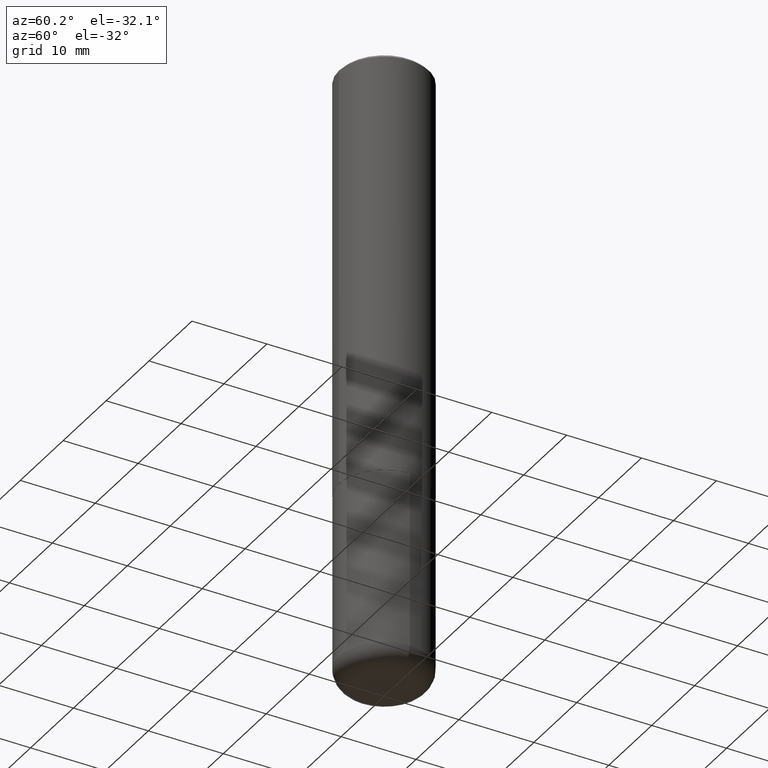
[diagram: clean part render]
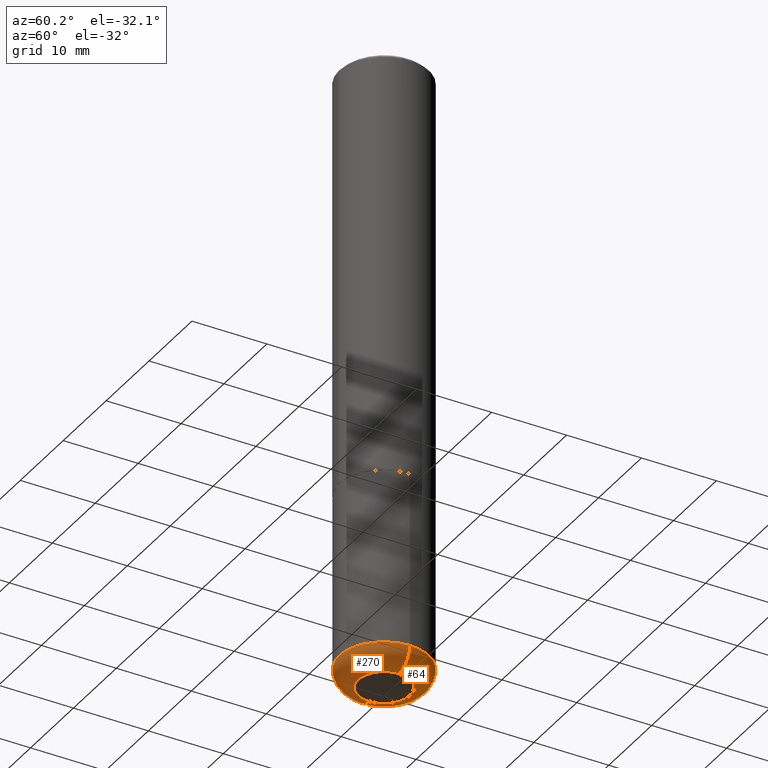
[diagram: same view with one multi-face feature highlighted, each face labeled with its STEP entity id]
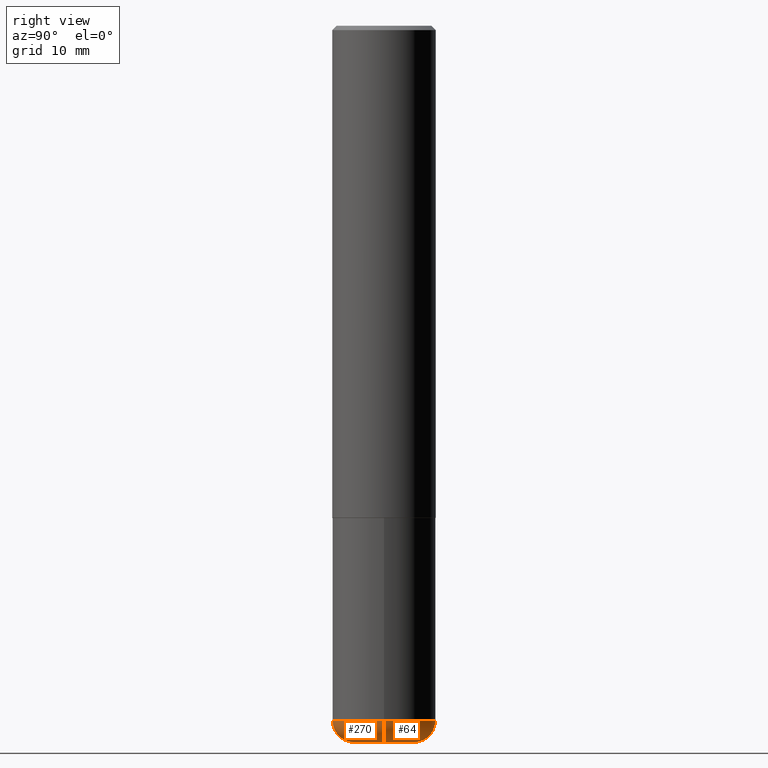
[diagram: same view with one multi-face feature highlighted, each face labeled with its STEP entity id]
A machine part, auxiliary view. The highlighted faces form ONE feature: a constant-radius fillet chain: 2 tangent blend faces with common blend radius 2.4994 mm. The faces share edges in the B-rep.
A second angle (right view) of the same feature is appended — it is thin or edge-on in the first view.
Their STEP definitions:
[1] entity #64 (Torus):
#45 = EDGE_CURVE ( 'NONE', #100, #120, #231, .T. ) ;
#57 = CARTESIAN_POINT ( 'NONE',  ( -0.1378000000000000058, -9.908617773195276440E-15, -3.267700000000000049 ) ) ;
#63 = EDGE_LOOP ( 'NONE', ( #332, #238, #210, #361 ) ) ;
#64 = ADVANCED_FACE ( 'NONE', ( #126 ), #249, .T. ) ;
#65 = DIRECTION ( 'NONE',  ( -2.445468806185136597E-29, 3.491481338843145583E-15, 1.000000000000000000 ) ) ;
#66 = AXIS2_PLACEMENT_3D ( 'NONE', #224, #94, #280 ) ;
#87 = CARTESIAN_POINT ( 'NONE',  ( -0.2362000000000000766, -9.387249865330223945E-15, -3.169299999999999784 ) ) ;
#94 = DIRECTION ( 'NONE',  ( -2.445468806185136597E-29, 3.491481338843145583E-15, 1.000000000000000000 ) ) ;
#99 = CARTESIAN_POINT ( 'NONE',  ( 7.750424287442554569E-29, -1.106555180719558034E-14, -3.169299999999999784 ) ) ;
#100 = VERTEX_POINT ( 'NONE', #57 ) ;
#116 = DIRECTION ( 'NONE',  ( 1.000000000000000000, -6.982962677686272233E-15, 0.000000000000000000 ) ) ;
#120 = VERTEX_POINT ( 'NONE', #87 ) ;
#126 = FACE_OUTER_BOUND ( 'NONE', #63, .T. ) ;
#130 = AXIS2_PLACEMENT_3D ( 'NONE', #228, #288, #413 ) ;
#174 = VERTEX_POINT ( 'NONE', #222 ) ;
#183 = EDGE_CURVE ( 'NONE', #258, #100, #379, .T. ) ;
#197 = CARTESIAN_POINT ( 'NONE',  ( 0.1378000000000000058, -1.237136582792291392E-14, -3.267700000000000049 ) ) ;
#210 = ORIENTED_EDGE ( 'NONE', *, *, #235, .F. ) ;
#222 = CARTESIAN_POINT ( 'NONE',  ( 0.2362000000000000766, -1.271492759166507844E-14, -3.169299999999999784 ) ) ;
#224 = CARTESIAN_POINT ( 'NONE',  ( 7.750424287442554569E-29, -1.106555180719558034E-14, -3.169299999999999784 ) ) ;
#228 = CARTESIAN_POINT ( 'NONE',  ( 7.991058417971171713E-29, -1.140911357093774644E-14, -3.267700000000000049 ) ) ;
#231 = CIRCLE ( 'NONE', #283, 0.09840000000000014013 ) ;
#235 = EDGE_CURVE ( 'NONE', #174, #120, #260, .T. ) ;
#238 = ORIENTED_EDGE ( 'NONE', *, *, #45, .T. ) ;
#243 = AXIS2_PLACEMENT_3D ( 'NONE', #265, #362, #116 ) ;
#249 = TOROIDAL_SURFACE ( 'NONE', #66, 0.1378000000000000058, 0.09840000000000012625 ) ;
#250 = CIRCLE ( 'NONE', #243, 0.09840000000000014013 ) ;
#258 = VERTEX_POINT ( 'NONE', #197 ) ;
#260 = CIRCLE ( 'NONE', #319, 0.2361999999999999933 ) ;
#265 = CARTESIAN_POINT ( 'NONE',  ( 0.1378000000000000058, -1.202780406418074782E-14, -3.169299999999999784 ) ) ;
#280 = DIRECTION ( 'NONE',  ( 1.000000000000000000, -6.982962677686269077E-15, 4.883557194083113462E-29 ) ) ;
#283 = AXIS2_PLACEMENT_3D ( 'NONE', #403, #378, #405 ) ;
#288 = DIRECTION ( 'NONE',  ( -2.445468806185136597E-29, 3.491481338843145583E-15, 1.000000000000000000 ) ) ;
#319 = AXIS2_PLACEMENT_3D ( 'NONE', #99, #65, #326 ) ;
#326 = DIRECTION ( 'NONE',  ( 1.000000000000000000, -6.982962677686265133E-15, 0.000000000000000000 ) ) ;
#332 = ORIENTED_EDGE ( 'NONE', *, *, #183, .T. ) ;
#361 = ORIENTED_EDGE ( 'NONE', *, *, #386, .F. ) ;
#362 = DIRECTION ( 'NONE',  ( -6.982962677686266711E-15, -1.000000000000000000, 3.491481338843145583E-15 ) ) ;
#378 = DIRECTION ( 'NONE',  ( 7.105427357601001859E-15, 1.000000000000000000, -3.491481338843145583E-15 ) ) ;
#379 = CIRCLE ( 'NONE', #130, 0.1378000000000000058 ) ;
#386 = EDGE_CURVE ( 'NONE', #258, #174, #250, .T. ) ;
#403 = CARTESIAN_POINT ( 'NONE',  ( -0.1378000000000000058, -1.008642391731816283E-14, -3.169299999999999784 ) ) ;
#405 = DIRECTION ( 'NONE',  ( -1.000000000000000000, 7.105427357601008170E-15, 0.000000000000000000 ) ) ;
#413 = DIRECTION ( 'NONE',  ( 1.000000000000000000, -6.982962677686265922E-15, 0.000000000000000000 ) ) ;
[2] entity #270 (Torus):
#5 = DIRECTION ( 'NONE',  ( -2.445468806185136597E-29, 3.491481338843145583E-15, 1.000000000000000000 ) ) ;
#37 = DIRECTION ( 'NONE',  ( -2.445468806185136597E-29, 3.491481338843145583E-15, 1.000000000000000000 ) ) ;
#45 = EDGE_CURVE ( 'NONE', #100, #120, #231, .T. ) ;
#49 = EDGE_LOOP ( 'NONE', ( #70, #79, #82, #113 ) ) ;
#57 = CARTESIAN_POINT ( 'NONE',  ( -0.1378000000000000058, -9.908617773195276440E-15, -3.267700000000000049 ) ) ;
#70 = ORIENTED_EDGE ( 'NONE', *, *, #45, .F. ) ;
#71 = CARTESIAN_POINT ( 'NONE',  ( 7.750424287442554569E-29, -1.106555180719558034E-14, -3.169299999999999784 ) ) ;
#79 = ORIENTED_EDGE ( 'NONE', *, *, #318, .T. ) ;
#82 = ORIENTED_EDGE ( 'NONE', *, *, #386, .T. ) ;
#87 = CARTESIAN_POINT ( 'NONE',  ( -0.2362000000000000766, -9.387249865330223945E-15, -3.169299999999999784 ) ) ;
#90 = CIRCLE ( 'NONE', #325, 0.1378000000000000058 ) ;
#100 = VERTEX_POINT ( 'NONE', #57 ) ;
#113 = ORIENTED_EDGE ( 'NONE', *, *, #327, .F. ) ;
#116 = DIRECTION ( 'NONE',  ( 1.000000000000000000, -6.982962677686272233E-15, 0.000000000000000000 ) ) ;
#120 = VERTEX_POINT ( 'NONE', #87 ) ;
#144 = CIRCLE ( 'NONE', #339, 0.2361999999999999933 ) ;
#174 = VERTEX_POINT ( 'NONE', #222 ) ;
#197 = CARTESIAN_POINT ( 'NONE',  ( 0.1378000000000000058, -1.237136582792291392E-14, -3.267700000000000049 ) ) ;
#200 = DIRECTION ( 'NONE',  ( -2.445468806185136597E-29, 3.491481338843145583E-15, 1.000000000000000000 ) ) ;
#222 = CARTESIAN_POINT ( 'NONE',  ( 0.2362000000000000766, -1.271492759166507844E-14, -3.169299999999999784 ) ) ;
#231 = CIRCLE ( 'NONE', #283, 0.09840000000000014013 ) ;
#243 = AXIS2_PLACEMENT_3D ( 'NONE', #265, #362, #116 ) ;
#250 = CIRCLE ( 'NONE', #243, 0.09840000000000014013 ) ;
#258 = VERTEX_POINT ( 'NONE', #197 ) ;
#265 = CARTESIAN_POINT ( 'NONE',  ( 0.1378000000000000058, -1.202780406418074782E-14, -3.169299999999999784 ) ) ;
#268 = CARTESIAN_POINT ( 'NONE',  ( 7.750424287442554569E-29, -1.106555180719558034E-14, -3.169299999999999784 ) ) ;
#270 = ADVANCED_FACE ( 'NONE', ( #330 ), #294, .T. ) ;
#283 = AXIS2_PLACEMENT_3D ( 'NONE', #403, #378, #405 ) ;
#294 = TOROIDAL_SURFACE ( 'NONE', #347, 0.1378000000000000058, 0.09840000000000012625 ) ;
#297 = CARTESIAN_POINT ( 'NONE',  ( 7.991058417971171713E-29, -1.140911357093774644E-14, -3.267700000000000049 ) ) ;
#318 = EDGE_CURVE ( 'NONE', #100, #258, #90, .T. ) ;
#325 = AXIS2_PLACEMENT_3D ( 'NONE', #297, #37, #360 ) ;
#327 = EDGE_CURVE ( 'NONE', #120, #174, #144, .T. ) ;
#328 = DIRECTION ( 'NONE',  ( 1.000000000000000000, -6.982962677686269077E-15, 4.883557194083113462E-29 ) ) ;
#330 = FACE_OUTER_BOUND ( 'NONE', #49, .T. ) ;
#339 = AXIS2_PLACEMENT_3D ( 'NONE', #268, #5, #341 ) ;
#341 = DIRECTION ( 'NONE',  ( 1.000000000000000000, -6.982962677686265133E-15, 0.000000000000000000 ) ) ;
#347 = AXIS2_PLACEMENT_3D ( 'NONE', #71, #200, #328 ) ;
#360 = DIRECTION ( 'NONE',  ( 1.000000000000000000, -6.982962677686265922E-15, 0.000000000000000000 ) ) ;
#362 = DIRECTION ( 'NONE',  ( -6.982962677686266711E-15, -1.000000000000000000, 3.491481338843145583E-15 ) ) ;
#378 = DIRECTION ( 'NONE',  ( 7.105427357601001859E-15, 1.000000000000000000, -3.491481338843145583E-15 ) ) ;
#386 = EDGE_CURVE ( 'NONE', #258, #174, #250, .T. ) ;
#403 = CARTESIAN_POINT ( 'NONE',  ( -0.1378000000000000058, -1.008642391731816283E-14, -3.169299999999999784 ) ) ;
#405 = DIRECTION ( 'NONE',  ( -1.000000000000000000, 7.105427357601008170E-15, 0.000000000000000000 ) ) ;